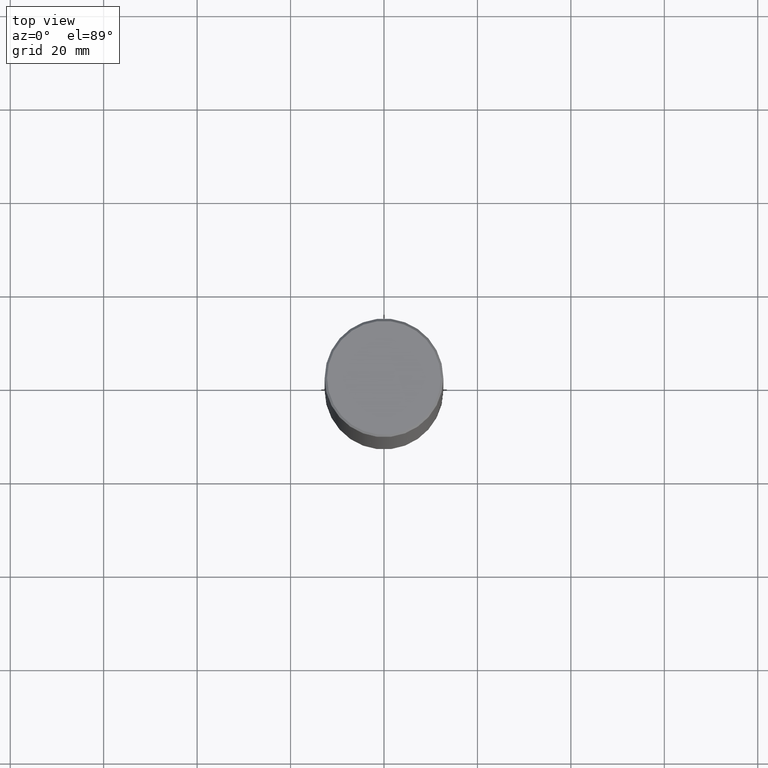
[diagram: clean part render]
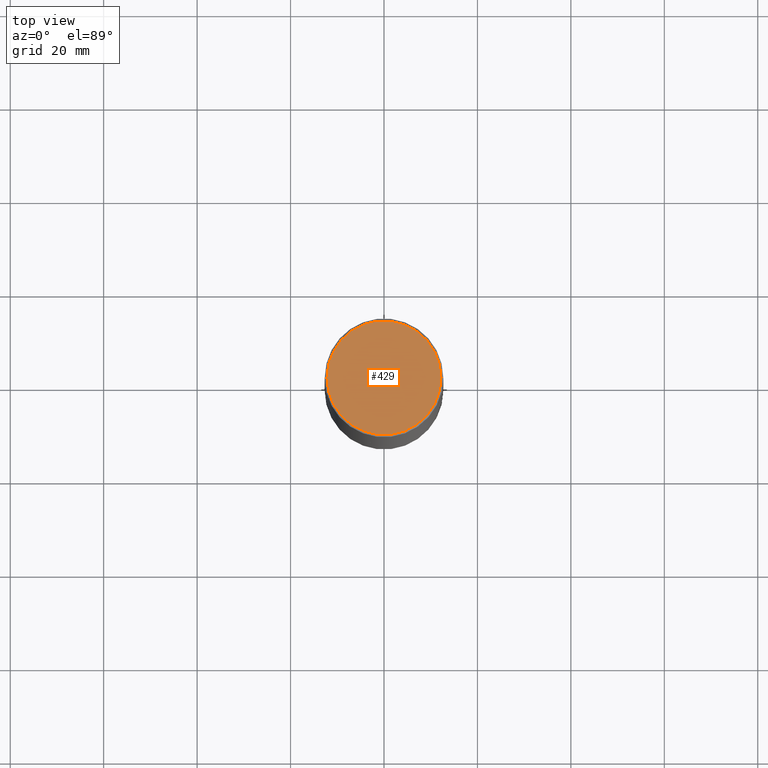
[diagram: same view with one face highlighted and labeled with its STEP entity id]
A machine part, top view. The second image highlights one B-rep face of the part: STEP entity #429.
In plain terms, the highlighted planar face has unit normal (0, -0, -1).
Its self-contained STEP definition (entity closure, byte-faithful):
#13 = DIRECTION ( 'NONE',  ( 1.000000000000000000, -6.982962677686267499E-15, 4.876036955247141175E-29 ) ) ;
#17 = AXIS2_PLACEMENT_3D ( 'NONE', #258, #407, #67 ) ;
#23 = PLANE ( 'NONE',  #280 ) ;
#28 = FACE_OUTER_BOUND ( 'NONE', #416, .T. ) ;
#38 = ORIENTED_EDGE ( 'NONE', *, *, #461, .T. ) ;
#56 = CARTESIAN_POINT ( 'NONE',  ( -3.131554243005659264E-46, 4.471029511141341874E-32, 1.280553747030123384E-17 ) ) ;
#67 = DIRECTION ( 'NONE',  ( 1.000000000000000000, -6.982962677686267499E-15, 4.876036955247141175E-29 ) ) ;
#131 = CIRCLE ( 'NONE', #17, 0.4799999999999988165 ) ;
#143 = ORIENTED_EDGE ( 'NONE', *, *, #305, .T. ) ;
#177 = DIRECTION ( 'NONE',  ( -2.445468806185136597E-29, 3.491481338843145583E-15, 1.000000000000000000 ) ) ;
#188 = VERTEX_POINT ( 'NONE', #199 ) ;
#199 = CARTESIAN_POINT ( 'NONE',  ( -0.4799999999999988165, 3.386736898677831703E-15, 1.280553747027767124E-17 ) ) ;
#242 = AXIS2_PLACEMENT_3D ( 'NONE', #56, #177, #13 ) ;
#257 = VERTEX_POINT ( 'NONE', #404 ) ;
#258 = CARTESIAN_POINT ( 'NONE',  ( -3.131554243005659264E-46, 4.471029511141341874E-32, 1.280553747030123384E-17 ) ) ;
#280 = AXIS2_PLACEMENT_3D ( 'NONE', #449, #410, #332 ) ;
#305 = EDGE_CURVE ( 'NONE', #188, #257, #425, .T. ) ;
#332 = DIRECTION ( 'NONE',  ( -1.000000000000000000, 6.982962677686265922E-15, -4.876176775795935793E-29 ) ) ;
#404 = CARTESIAN_POINT ( 'NONE',  ( 0.4799999999999988165, -3.396558832296475394E-15, 1.280553747032483033E-17 ) ) ;
#407 = DIRECTION ( 'NONE',  ( -2.445468806185136597E-29, 3.491481338843145583E-15, 1.000000000000000000 ) ) ;
#410 = DIRECTION ( 'NONE',  ( 2.438088387897960049E-29, -3.491481338843145188E-15, -1.000000000000000000 ) ) ;
#416 = EDGE_LOOP ( 'NONE', ( #143, #38 ) ) ;
#425 = CIRCLE ( 'NONE', #242, 0.4799999999999988165 ) ;
#429 = ADVANCED_FACE ( 'NONE', ( #28 ), #23, .F. ) ;
#449 = CARTESIAN_POINT ( 'NONE',  ( 3.351822085289399659E-15, 0.4799999999999988165, -1.669508273909555106E-15 ) ) ;
#461 = EDGE_CURVE ( 'NONE', #257, #188, #131, .T. ) ;